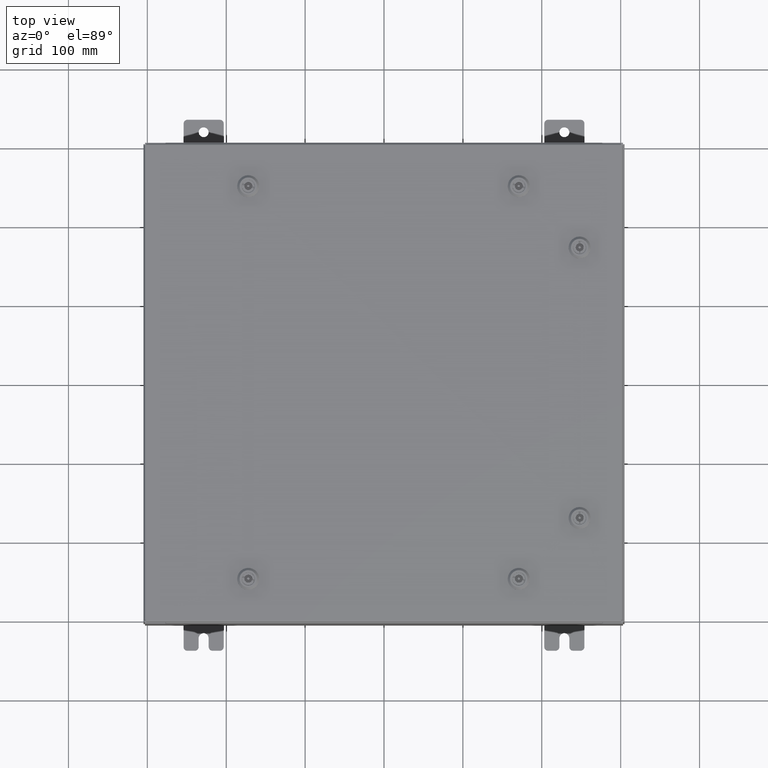
[diagram: clean part render]
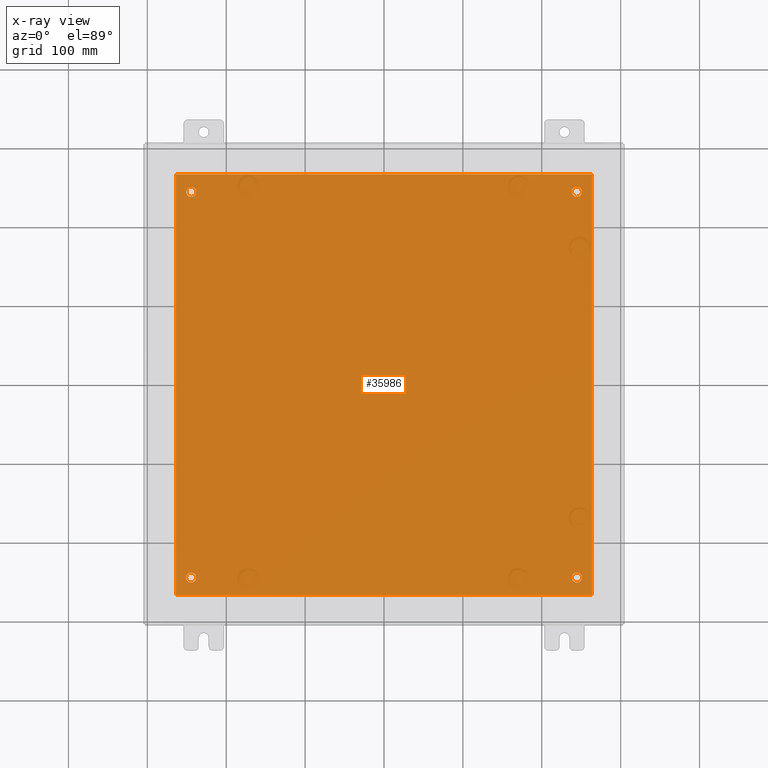
[diagram: x-ray — body ghosted, one internal face saturated and labeled with its STEP entity id]
A machine part, top view, then the same camera in x-ray: the body is ghosted and one INTERNAL B-rep face — a face not visible from any outside direction — is saturated and labeled: STEP entity #35986.
In plain terms, the highlighted planar face has unit normal (0, 0, -1).
Its self-contained STEP definition (entity closure, byte-faithful):
#754 = AXIS2_PLACEMENT_3D ( 'NONE', #53698, #53623, #53540 ) ;
#1718 = LINE ( 'NONE', #13917, #3249 ) ;
#2201 = CIRCLE ( 'NONE', #754, 0.2499999999999976100 ) ;
#2292 = ORIENTED_EDGE ( 'NONE', *, *, #31548, .T. ) ;
#3249 = VECTOR ( 'NONE', #12784, 39.37007874015748100 ) ;
#4201 = VECTOR ( 'NONE', #33771, 39.37007874015748100 ) ;
#4743 = VERTEX_POINT ( 'NONE', #60360 ) ;
#4859 = CIRCLE ( 'NONE', #36200, 0.2499999999999976100 ) ;
#8613 = DIRECTION ( 'NONE',  ( -1.000000000000000000, 0.0000000000000000000, -0.0000000000000000000 ) ) ;
#8671 = DIRECTION ( 'NONE',  ( 0.0000000000000000000, 0.0000000000000000000, -1.000000000000000000 ) ) ;
#8954 = AXIS2_PLACEMENT_3D ( 'NONE', #22196, #22102, #22052 ) ;
#9010 = CIRCLE ( 'NONE', #13528, 0.2499999999999987000 ) ;
#9256 = VERTEX_POINT ( 'NONE', #51714 ) ;
#9284 = PLANE ( 'NONE',  #47957 ) ;
#9325 = VERTEX_POINT ( 'NONE', #49911 ) ;
#9578 = CARTESIAN_POINT ( 'NONE',  ( 0.0000000000000000000, 0.0000000000000000000, -0.1040000000000000400 ) ) ;
#10216 = VERTEX_POINT ( 'NONE', #26797 ) ;
#11084 = DIRECTION ( 'NONE',  ( -1.000000000000000000, -0.0000000000000000000, -0.0000000000000000000 ) ) ;
#11172 = CARTESIAN_POINT ( 'NONE',  ( -10.50000000000000000, 10.50000000000000200, -0.1040000000000000400 ) ) ;
#11191 = EDGE_CURVE ( 'NONE', #9325, #61341, #26098, .T. ) ;
#12449 = AXIS2_PLACEMENT_3D ( 'NONE', #26071, #25722, #25650 ) ;
#12581 = DIRECTION ( 'NONE',  ( -0.0000000000000000000, -0.0000000000000000000, 1.000000000000000000 ) ) ;
#12784 = DIRECTION ( 'NONE',  ( 1.000000000000000000, 0.0000000000000000000, 0.0000000000000000000 ) ) ;
#13304 = DIRECTION ( 'NONE',  ( -0.0000000000000000000, -0.0000000000000000000, 1.000000000000000000 ) ) ;
#13528 = AXIS2_PLACEMENT_3D ( 'NONE', #42382, #13304, #47137 ) ;
#13917 = CARTESIAN_POINT ( 'NONE',  ( -10.50000000000000200, -10.50000000000000000, -0.1040000000000000400 ) ) ;
#14075 = ORIENTED_EDGE ( 'NONE', *, *, #15700, .T. ) ;
#15366 = VERTEX_POINT ( 'NONE', #61077 ) ;
#15700 = EDGE_CURVE ( 'NONE', #9256, #10216, #4859, .T. ) ;
#16023 = AXIS2_PLACEMENT_3D ( 'NONE', #37157, #37100, #37030 ) ;
#17073 = FACE_BOUND ( 'NONE', #26113, .T. ) ;
#18836 = ORIENTED_EDGE ( 'NONE', *, *, #54428, .T. ) ;
#21427 = CIRCLE ( 'NONE', #16023, 0.2499999999999987000 ) ;
#22052 = DIRECTION ( 'NONE',  ( -1.000000000000000000, 0.0000000000000000000, 0.0000000000000000000 ) ) ;
#22102 = DIRECTION ( 'NONE',  ( -0.0000000000000000000, -0.0000000000000000000, 1.000000000000000000 ) ) ;
#22196 = CARTESIAN_POINT ( 'NONE',  ( -9.625000000000005300, 9.625000000000001800, -0.1040000000000000400 ) ) ;
#22552 = ORIENTED_EDGE ( 'NONE', *, *, #62539, .T. ) ;
#23400 = EDGE_CURVE ( 'NONE', #34087, #53364, #41483, .T. ) ;
#23780 = EDGE_CURVE ( 'NONE', #53364, #42213, #56351, .T. ) ;
#25375 = EDGE_LOOP ( 'NONE', ( #52009, #37367, #51758, #37060 ) ) ;
#25650 = DIRECTION ( 'NONE',  ( -1.000000000000000000, 0.0000000000000000000, 0.0000000000000000000 ) ) ;
#25722 = DIRECTION ( 'NONE',  ( -0.0000000000000000000, -0.0000000000000000000, 1.000000000000000000 ) ) ;
#25845 = CARTESIAN_POINT ( 'NONE',  ( 9.375000000000007100, 9.625000000000001800, -0.1040000000000000400 ) ) ;
#26071 = CARTESIAN_POINT ( 'NONE',  ( 9.625000000000005300, 9.625000000000001800, -0.1040000000000000400 ) ) ;
#26098 = CIRCLE ( 'NONE', #8954, 0.2499999999999987000 ) ;
#26113 = EDGE_LOOP ( 'NONE', ( #50672, #14075 ) ) ;
#26353 = EDGE_LOOP ( 'NONE', ( #41778, #18836 ) ) ;
#26463 = CARTESIAN_POINT ( 'NONE',  ( 9.875000000000003600, 9.625000000000001800, -0.1040000000000000400 ) ) ;
#26797 = CARTESIAN_POINT ( 'NONE',  ( 9.875000000000003600, -9.625000000000001800, -0.1040000000000000400 ) ) ;
#26977 = CARTESIAN_POINT ( 'NONE',  ( 10.38299999999999900, -10.50000000000000000, -0.1040000000000000400 ) ) ;
#28472 = FACE_OUTER_BOUND ( 'NONE', #25375, .T. ) ;
#29131 = EDGE_CURVE ( 'NONE', #15366, #34087, #1718, .T. ) ;
#30025 = DIRECTION ( 'NONE',  ( -1.000000000000000000, 0.0000000000000000000, 0.0000000000000000000 ) ) ;
#30087 = VERTEX_POINT ( 'NONE', #61524 ) ;
#30439 = DIRECTION ( 'NONE',  ( -0.0000000000000000000, -0.0000000000000000000, 1.000000000000000000 ) ) ;
#30861 = CARTESIAN_POINT ( 'NONE',  ( 9.625000000000005300, -9.625000000000001800, -0.1040000000000000400 ) ) ;
#31199 = CARTESIAN_POINT ( 'NONE',  ( 10.38300000000000100, -10.50000000000000200, -0.1040000000000008600 ) ) ;
#31548 = EDGE_CURVE ( 'NONE', #61341, #9325, #21427, .T. ) ;
#32012 = EDGE_CURVE ( 'NONE', #62458, #42263, #33559, .T. ) ;
#32385 = EDGE_CURVE ( 'NONE', #42213, #15366, #37337, .T. ) ;
#33559 = CIRCLE ( 'NONE', #12449, 0.2499999999999976100 ) ;
#33585 = EDGE_CURVE ( 'NONE', #10216, #9256, #2201, .T. ) ;
#33771 = DIRECTION ( 'NONE',  ( 0.0000000000000000000, 1.000000000000000000, 0.0000000000000000000 ) ) ;
#33775 = EDGE_LOOP ( 'NONE', ( #39158, #22552 ) ) ;
#34087 = VERTEX_POINT ( 'NONE', #26977 ) ;
#34114 = CARTESIAN_POINT ( 'NONE',  ( -10.38299999999999900, 10.50000000000000400, -0.1040000000000031700 ) ) ;
#35268 = EDGE_CURVE ( 'NONE', #4743, #30087, #49553, .T. ) ;
#35837 = VECTOR ( 'NONE', #44008, 39.37007874015748100 ) ;
#35986 = ADVANCED_FACE ( 'NONE', ( #42855, #17073, #41341, #53943, #28472 ), #9284, .T. ) ;
#36200 = AXIS2_PLACEMENT_3D ( 'NONE', #30861, #30439, #30025 ) ;
#37030 = DIRECTION ( 'NONE',  ( -1.000000000000000000, 0.0000000000000000000, 0.0000000000000000000 ) ) ;
#37060 = ORIENTED_EDGE ( 'NONE', *, *, #23400, .F. ) ;
#37100 = DIRECTION ( 'NONE',  ( -0.0000000000000000000, -0.0000000000000000000, 1.000000000000000000 ) ) ;
#37157 = CARTESIAN_POINT ( 'NONE',  ( -9.625000000000005300, 9.625000000000001800, -0.1040000000000000400 ) ) ;
#37337 = LINE ( 'NONE', #43860, #35837 ) ;
#37367 = ORIENTED_EDGE ( 'NONE', *, *, #32385, .F. ) ;
#39158 = ORIENTED_EDGE ( 'NONE', *, *, #32012, .T. ) ;
#41341 = FACE_BOUND ( 'NONE', #33775, .T. ) ;
#41483 = LINE ( 'NONE', #31199, #4201 ) ;
#41680 = CARTESIAN_POINT ( 'NONE',  ( 9.625000000000005300, 9.625000000000001800, -0.1040000000000000400 ) ) ;
#41778 = ORIENTED_EDGE ( 'NONE', *, *, #35268, .T. ) ;
#42213 = VERTEX_POINT ( 'NONE', #34114 ) ;
#42263 = VERTEX_POINT ( 'NONE', #25845 ) ;
#42382 = CARTESIAN_POINT ( 'NONE',  ( -9.625000000000005300, -9.625000000000001800, -0.1040000000000000400 ) ) ;
#42855 = FACE_BOUND ( 'NONE', #26353, .T. ) ;
#43725 = VECTOR ( 'NONE', #11084, 39.37007874015748100 ) ;
#43860 = CARTESIAN_POINT ( 'NONE',  ( -10.38299999999999900, 10.50000000000000400, -0.1040000000000031700 ) ) ;
#44008 = DIRECTION ( 'NONE',  ( 0.0000000000000000000, -1.000000000000000000, 0.0000000000000000000 ) ) ;
#44602 = CARTESIAN_POINT ( 'NONE',  ( 10.38300000000000100, 10.50000000000000200, -0.1040000000000000400 ) ) ;
#44800 = DIRECTION ( 'NONE',  ( -1.000000000000000000, 0.0000000000000000000, 0.0000000000000000000 ) ) ;
#44915 = DIRECTION ( 'NONE',  ( -0.0000000000000000000, -0.0000000000000000000, 1.000000000000000000 ) ) ;
#44988 = CARTESIAN_POINT ( 'NONE',  ( -9.625000000000005300, -9.625000000000001800, -0.1040000000000000400 ) ) ;
#46438 = DIRECTION ( 'NONE',  ( -1.000000000000000000, 0.0000000000000000000, 0.0000000000000000000 ) ) ;
#47137 = DIRECTION ( 'NONE',  ( -1.000000000000000000, 0.0000000000000000000, 0.0000000000000000000 ) ) ;
#47957 = AXIS2_PLACEMENT_3D ( 'NONE', #9578, #8671, #8613 ) ;
#49553 = CIRCLE ( 'NONE', #57210, 0.2499999999999987000 ) ;
#49911 = CARTESIAN_POINT ( 'NONE',  ( -9.875000000000005300, 9.625000000000001800, -0.1040000000000000400 ) ) ;
#50672 = ORIENTED_EDGE ( 'NONE', *, *, #33585, .T. ) ;
#51714 = CARTESIAN_POINT ( 'NONE',  ( 9.375000000000007100, -9.625000000000001800, -0.1040000000000000400 ) ) ;
#51758 = ORIENTED_EDGE ( 'NONE', *, *, #23780, .F. ) ;
#52009 = ORIENTED_EDGE ( 'NONE', *, *, #29131, .F. ) ;
#52299 = EDGE_LOOP ( 'NONE', ( #2292, #53668 ) ) ;
#52361 = AXIS2_PLACEMENT_3D ( 'NONE', #41680, #12581, #46438 ) ;
#52729 = CIRCLE ( 'NONE', #52361, 0.2499999999999976100 ) ;
#53364 = VERTEX_POINT ( 'NONE', #44602 ) ;
#53540 = DIRECTION ( 'NONE',  ( -1.000000000000000000, 0.0000000000000000000, 0.0000000000000000000 ) ) ;
#53623 = DIRECTION ( 'NONE',  ( -0.0000000000000000000, -0.0000000000000000000, 1.000000000000000000 ) ) ;
#53668 = ORIENTED_EDGE ( 'NONE', *, *, #11191, .T. ) ;
#53698 = CARTESIAN_POINT ( 'NONE',  ( 9.625000000000005300, -9.625000000000001800, -0.1040000000000000400 ) ) ;
#53943 = FACE_BOUND ( 'NONE', #52299, .T. ) ;
#54428 = EDGE_CURVE ( 'NONE', #30087, #4743, #9010, .T. ) ;
#54971 = CARTESIAN_POINT ( 'NONE',  ( -9.375000000000005300, 9.625000000000001800, -0.1040000000000000400 ) ) ;
#56351 = LINE ( 'NONE', #11172, #43725 ) ;
#57210 = AXIS2_PLACEMENT_3D ( 'NONE', #44988, #44915, #44800 ) ;
#60360 = CARTESIAN_POINT ( 'NONE',  ( -9.375000000000005300, -9.625000000000001800, -0.1040000000000000400 ) ) ;
#61077 = CARTESIAN_POINT ( 'NONE',  ( -10.38299999999999900, -10.50000000000000000, -0.1040000000000031700 ) ) ;
#61341 = VERTEX_POINT ( 'NONE', #54971 ) ;
#61524 = CARTESIAN_POINT ( 'NONE',  ( -9.875000000000005300, -9.625000000000001800, -0.1040000000000000400 ) ) ;
#62458 = VERTEX_POINT ( 'NONE', #26463 ) ;
#62539 = EDGE_CURVE ( 'NONE', #42263, #62458, #52729, .T. ) ;